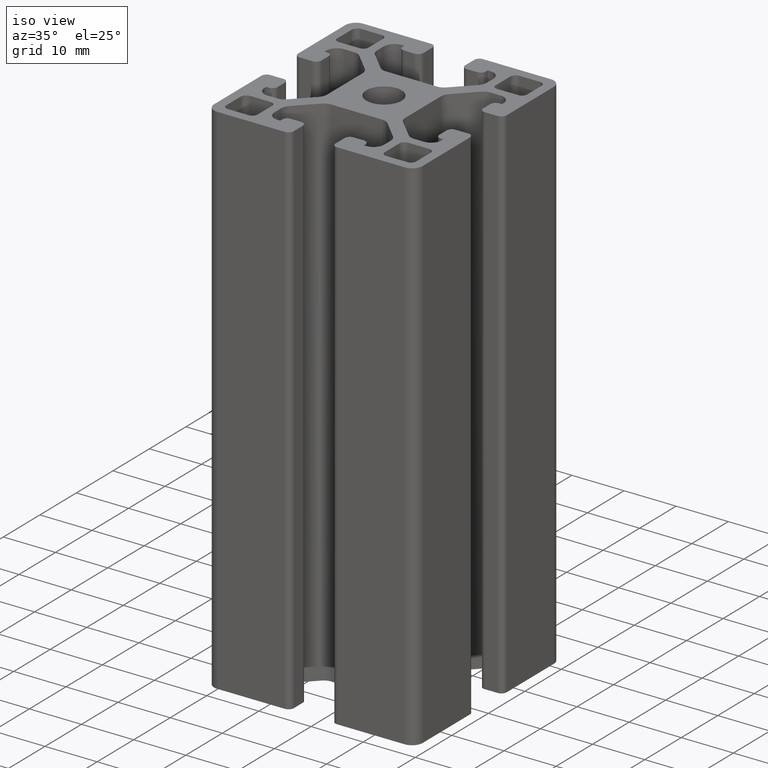
[diagram: clean part render]
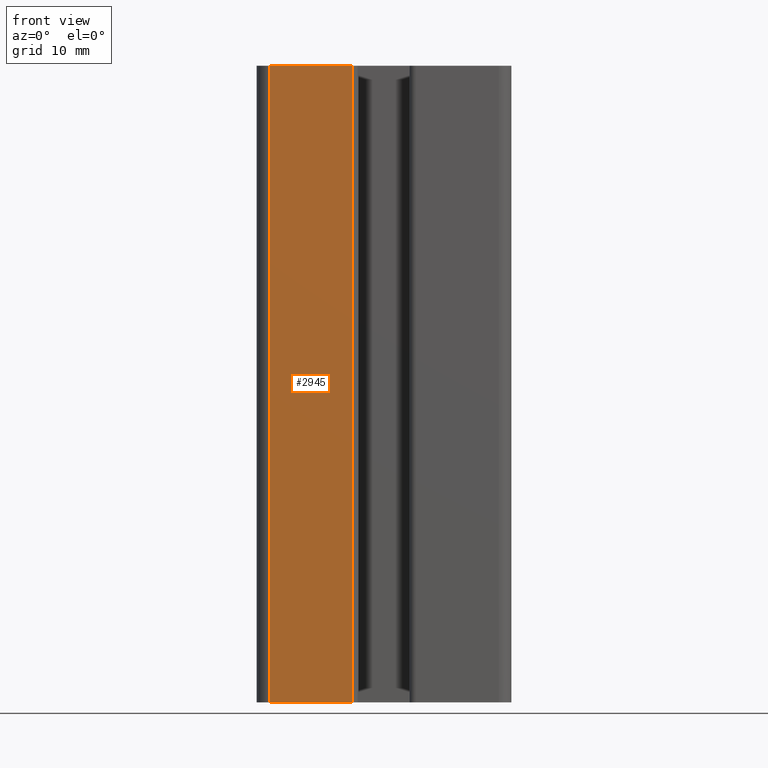
[diagram: tour spotlight — one face highlighted and labeled with its STEP entity id]
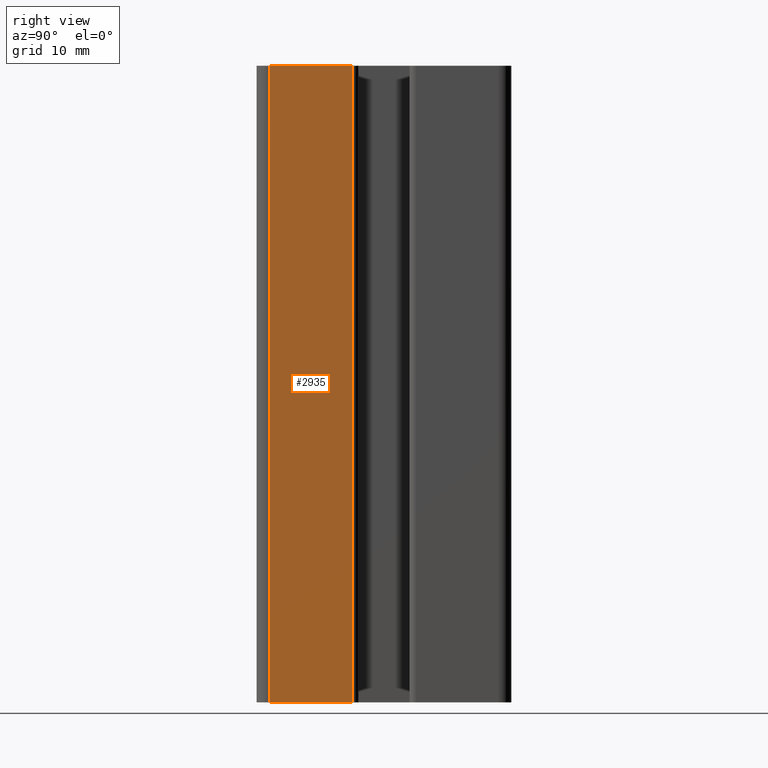
[diagram: tour spotlight — one face highlighted and labeled with its STEP entity id]
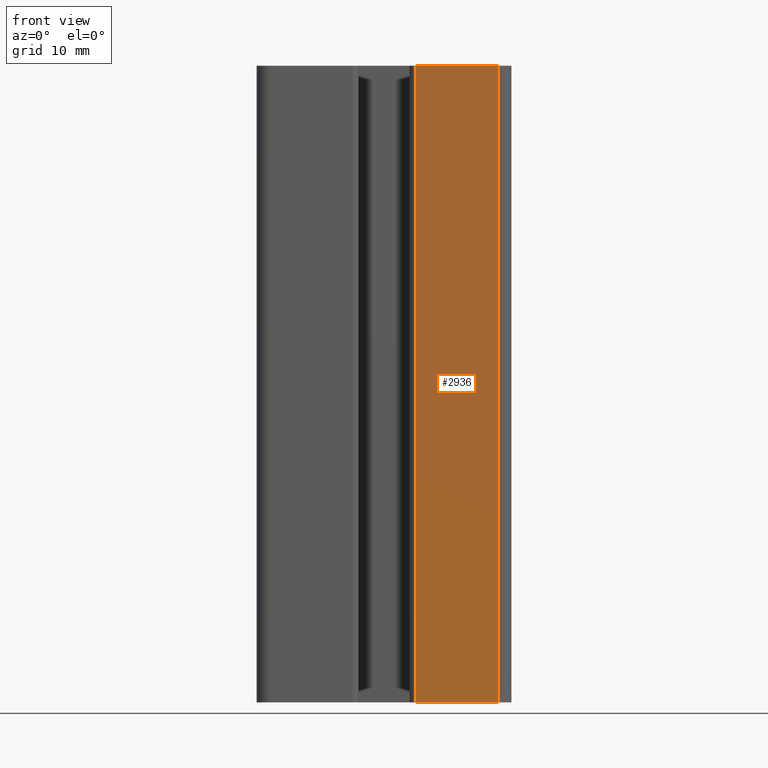
[diagram: tour spotlight — one face highlighted and labeled with its STEP entity id]
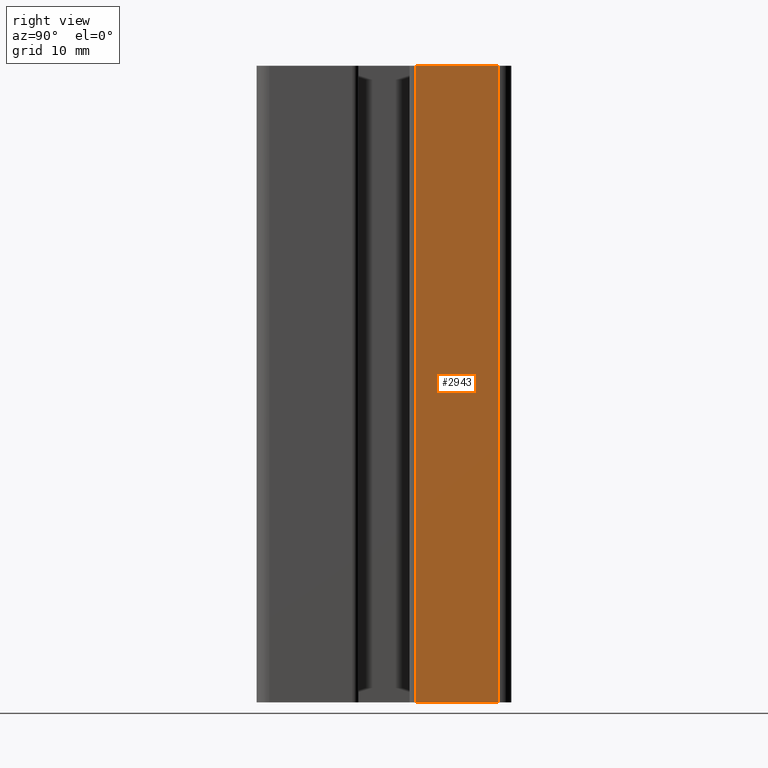
[diagram: tour spotlight — one face highlighted and labeled with its STEP entity id]
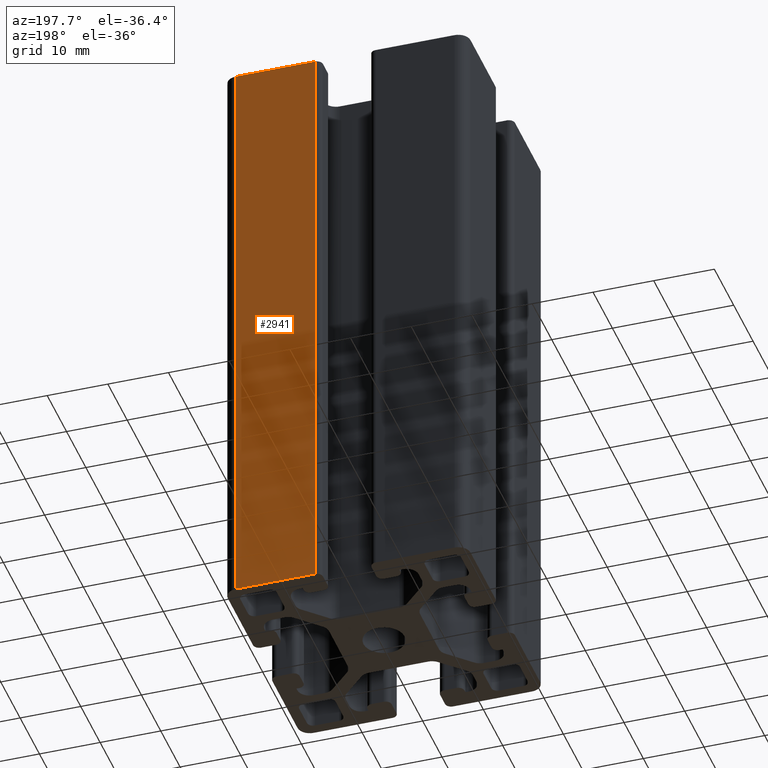
[diagram: tour spotlight — one face highlighted and labeled with its STEP entity id]
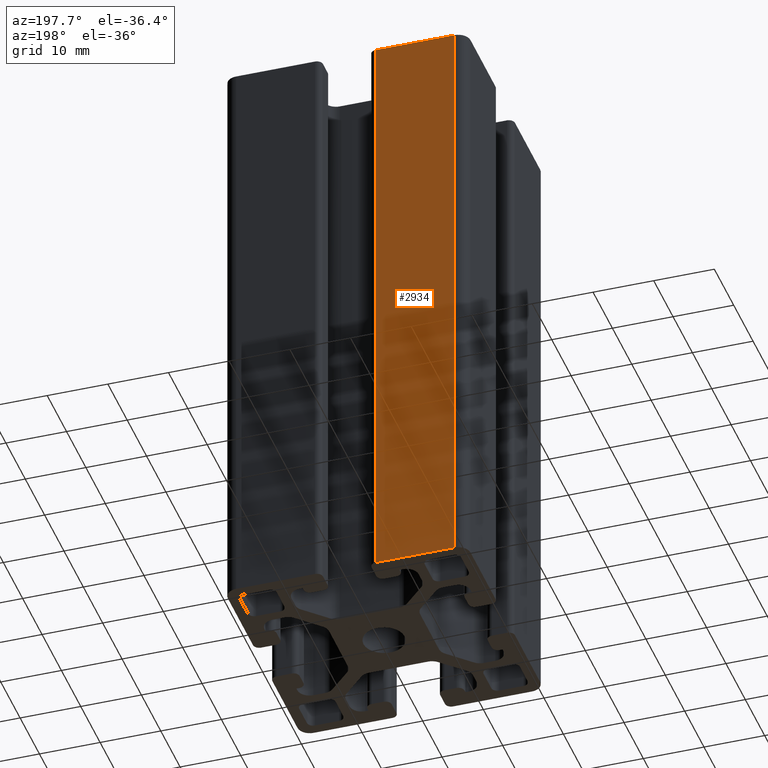
[diagram: tour spotlight — one face highlighted and labeled with its STEP entity id]
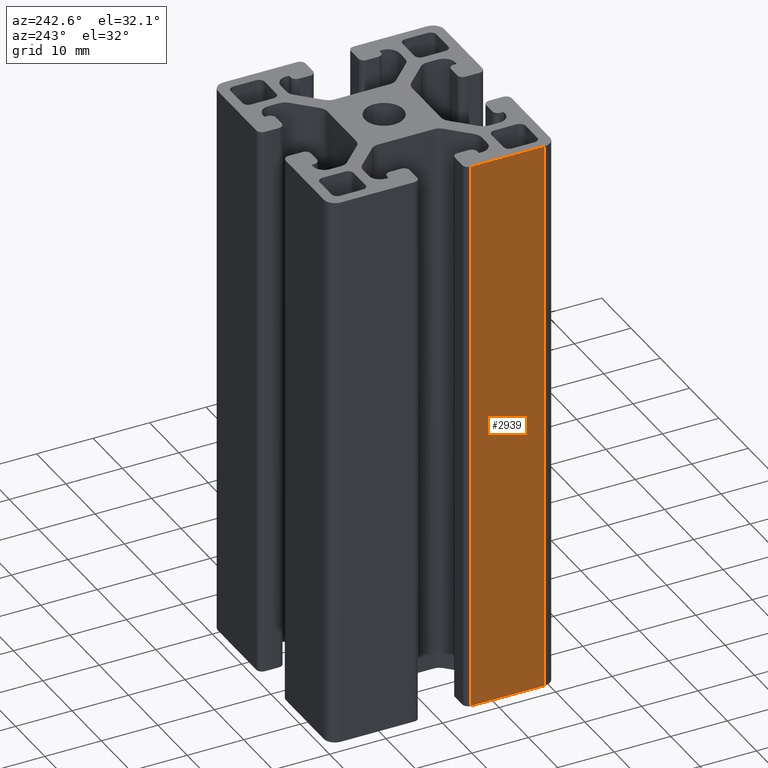
[diagram: tour spotlight — one face highlighted and labeled with its STEP entity id]
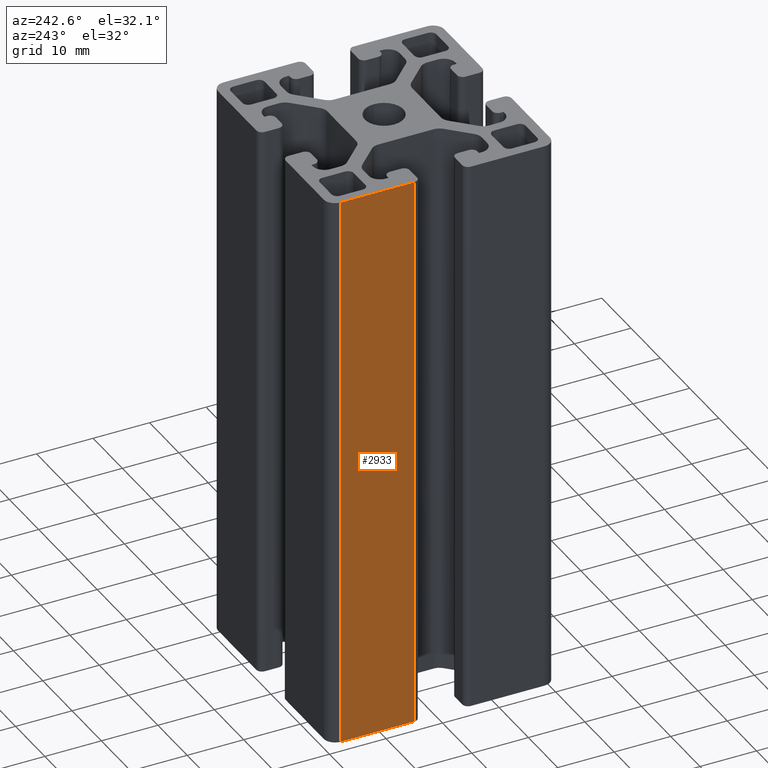
[diagram: tour spotlight — one face highlighted and labeled with its STEP entity id]
A machine part: a face-by-face anatomy tour. The part has 147 B-rep faces; the first image is the clean iso view, then the 8 largest visible faces are spotlighted one at a time (largest first), each with its STEP entity span.

Face 1 — front view, entity #2945. In plain terms, the highlighted planar face has unit normal (0, -1, 0).
Definition (entity closure, byte-faithful):
#378=FACE_OUTER_BOUND('',#531,.T.);
#531=EDGE_LOOP('',(#2573,#2574,#2575,#2576));
#786=LINE('',#4845,#1082);
#824=LINE('',#4945,#1120);
#827=LINE('',#4954,#1123);
#833=LINE('',#4972,#1129);
#1082=VECTOR('',#3966,100.);
#1120=VECTOR('',#4064,13.0000019959489);
#1123=VECTOR('',#4073,100.);
#1129=VECTOR('',#4099,13.0000019959489);
#1380=VERTEX_POINT('',#4841);
#1382=VERTEX_POINT('',#4844);
#1414=VERTEX_POINT('',#4944);
#1416=VERTEX_POINT('',#4950);
#1787=EDGE_CURVE('',#1380,#1382,#786,.T.);
#1839=EDGE_CURVE('',#1382,#1414,#824,.T.);
#1844=EDGE_CURVE('',#1414,#1416,#827,.T.);
#1853=EDGE_CURVE('',#1380,#1416,#833,.T.);
#2573=ORIENTED_EDGE('',*,*,#1787,.F.);
#2574=ORIENTED_EDGE('',*,*,#1853,.T.);
#2575=ORIENTED_EDGE('',*,*,#1844,.F.);
#2576=ORIENTED_EDGE('',*,*,#1839,.F.);
#2798=PLANE('',#3232);
#2945=ADVANCED_FACE('',(#378),#2798,.T.);
#3232=AXIS2_PLACEMENT_3D('',#4971,#4097,#4098);
#3966=DIRECTION('',(0.,0.,-1.));
#4064=DIRECTION('',(-1.,0.,0.));
#4073=DIRECTION('',(0.,0.,1.));
#4097=DIRECTION('center_axis',(0.,-1.,0.));
#4098=DIRECTION('ref_axis',(1.,0.,0.));
#4099=DIRECTION('',(-1.,0.,0.));
#4841=CARTESIAN_POINT('',(-4.99999800405114,-20.,100.));
#4844=CARTESIAN_POINT('',(-4.99999800405114,-20.,0.));
#4845=CARTESIAN_POINT('',(-4.99999800405114,-20.,0.));
#4944=CARTESIAN_POINT('',(-18.,-20.,0.));
#4945=CARTESIAN_POINT('',(-9.,-20.,0.));
#4950=CARTESIAN_POINT('',(-18.,-20.,100.));
#4954=CARTESIAN_POINT('',(-18.,-20.,0.));
#4971=CARTESIAN_POINT('Origin',(-18.,-20.,0.));
#4972=CARTESIAN_POINT('',(-9.,-20.,100.));

Face 2 — right view, entity #2935. In plain terms, the highlighted planar face has unit normal (1, 0, 0).
Definition (entity closure, byte-faithful):
#368=FACE_OUTER_BOUND('',#516,.T.);
#516=EDGE_LOOP('',(#2392,#2393,#2394,#2395));
#705=LINE('',#4601,#1001);
#816=LINE('',#4926,#1112);
#817=LINE('',#4928,#1113);
#818=LINE('',#4929,#1114);
#1001=VECTOR('',#3725,100.);
#1112=VECTOR('',#4046,13.0000019959488);
#1113=VECTOR('',#4047,100.);
#1114=VECTOR('',#4048,13.0000019959488);
#1298=VERTEX_POINT('',#4598);
#1299=VERTEX_POINT('',#4600);
#1408=VERTEX_POINT('',#4925);
#1409=VERTEX_POINT('',#4927);
#1666=EDGE_CURVE('',#1298,#1299,#705,.T.);
#1828=EDGE_CURVE('',#1298,#1408,#816,.T.);
#1829=EDGE_CURVE('',#1409,#1408,#817,.T.);
#1830=EDGE_CURVE('',#1299,#1409,#818,.T.);
#2392=ORIENTED_EDGE('',*,*,#1666,.F.);
#2393=ORIENTED_EDGE('',*,*,#1828,.T.);
#2394=ORIENTED_EDGE('',*,*,#1829,.F.);
#2395=ORIENTED_EDGE('',*,*,#1830,.F.);
#2792=PLANE('',#3214);
#2935=ADVANCED_FACE('',(#368),#2792,.T.);
#3214=AXIS2_PLACEMENT_3D('',#4924,#4044,#4045);
#3725=DIRECTION('',(0.,0.,-1.));
#4044=DIRECTION('center_axis',(1.,0.,0.));
#4045=DIRECTION('ref_axis',(0.,1.,0.));
#4046=DIRECTION('',(0.,-1.,0.));
#4047=DIRECTION('',(0.,0.,1.));
#4048=DIRECTION('',(0.,-1.,0.));
#4598=CARTESIAN_POINT('',(20.,-4.99999800405117,100.));
#4600=CARTESIAN_POINT('',(20.,-4.99999800405117,0.));
#4601=CARTESIAN_POINT('',(20.,-4.99999800405116,0.));
#4924=CARTESIAN_POINT('Origin',(20.,-18.,0.));
#4925=CARTESIAN_POINT('',(20.,-18.,100.));
#4926=CARTESIAN_POINT('',(20.,-9.,100.));
#4927=CARTESIAN_POINT('',(20.,-18.,0.));
#4928=CARTESIAN_POINT('',(20.,-18.,0.));
#4929=CARTESIAN_POINT('',(20.,-9.,0.));

Face 3 — front view, entity #2936. In plain terms, the highlighted planar face has unit normal (0, -1, 0).
Definition (entity closure, byte-faithful):
#369=FACE_OUTER_BOUND('',#517,.T.);
#517=EDGE_LOOP('',(#2396,#2397,#2398,#2399));
#785=LINE('',#4839,#1081);
#819=LINE('',#4932,#1115);
#820=LINE('',#4934,#1116);
#821=LINE('',#4935,#1117);
#1081=VECTOR('',#3961,100.);
#1115=VECTOR('',#4051,13.0000019959488);
#1116=VECTOR('',#4052,100.);
#1117=VECTOR('',#4053,13.0000019959488);
#1378=VERTEX_POINT('',#4835);
#1379=VERTEX_POINT('',#4837);
#1410=VERTEX_POINT('',#4931);
#1411=VERTEX_POINT('',#4933);
#1785=EDGE_CURVE('',#1378,#1379,#785,.T.);
#1831=EDGE_CURVE('',#1410,#1379,#819,.T.);
#1832=EDGE_CURVE('',#1410,#1411,#820,.T.);
#1833=EDGE_CURVE('',#1411,#1378,#821,.T.);
#2396=ORIENTED_EDGE('',*,*,#1785,.T.);
#2397=ORIENTED_EDGE('',*,*,#1831,.F.);
#2398=ORIENTED_EDGE('',*,*,#1832,.T.);
#2399=ORIENTED_EDGE('',*,*,#1833,.T.);
#2793=PLANE('',#3215);
#2936=ADVANCED_FACE('',(#369),#2793,.T.);
#3215=AXIS2_PLACEMENT_3D('',#4930,#4049,#4050);
#3961=DIRECTION('',(0.,0.,-1.));
#4049=DIRECTION('center_axis',(0.,-1.,0.));
#4050=DIRECTION('ref_axis',(1.,0.,0.));
#4051=DIRECTION('',(-1.,0.,0.));
#4052=DIRECTION('',(0.,0.,1.));
#4053=DIRECTION('',(-1.,0.,0.));
#4835=CARTESIAN_POINT('',(4.99999800405117,-20.,100.));
#4837=CARTESIAN_POINT('',(4.99999800405117,-20.,0.));
#4839=CARTESIAN_POINT('',(4.99999800405117,-20.,0.));
#4930=CARTESIAN_POINT('Origin',(-18.,-20.,0.));
#4931=CARTESIAN_POINT('',(18.,-20.,0.));
#4932=CARTESIAN_POINT('',(-9.,-20.,0.));
#4933=CARTESIAN_POINT('',(18.,-20.,100.));
#4934=CARTESIAN_POINT('',(18.,-20.,0.));
#4935=CARTESIAN_POINT('',(-9.,-20.,100.));

Face 4 — right view, entity #2943. In plain terms, the highlighted planar face has unit normal (1, 0, 0).
Definition (entity closure, byte-faithful):
#376=FACE_OUTER_BOUND('',#529,.T.);
#529=EDGE_LOOP('',(#2565,#2566,#2567,#2568));
#707=LINE('',#4611,#1003);
#823=LINE('',#4942,#1119);
#831=LINE('',#4966,#1127);
#832=LINE('',#4968,#1128);
#1003=VECTOR('',#3735,100.);
#1119=VECTOR('',#4061,13.0000019959489);
#1127=VECTOR('',#4089,100.);
#1128=VECTOR('',#4092,13.0000019959489);
#1301=VERTEX_POINT('',#4605);
#1303=VERTEX_POINT('',#4609);
#1413=VERTEX_POINT('',#4940);
#1419=VERTEX_POINT('',#4964);
#1671=EDGE_CURVE('',#1301,#1303,#707,.T.);
#1837=EDGE_CURVE('',#1413,#1303,#823,.T.);
#1850=EDGE_CURVE('',#1413,#1419,#831,.T.);
#1851=EDGE_CURVE('',#1419,#1301,#832,.T.);
#2565=ORIENTED_EDGE('',*,*,#1671,.T.);
#2566=ORIENTED_EDGE('',*,*,#1837,.F.);
#2567=ORIENTED_EDGE('',*,*,#1850,.T.);
#2568=ORIENTED_EDGE('',*,*,#1851,.T.);
#2797=PLANE('',#3229);
#2943=ADVANCED_FACE('',(#376),#2797,.T.);
#3229=AXIS2_PLACEMENT_3D('',#4967,#4090,#4091);
#3735=DIRECTION('',(0.,0.,-1.));
#4061=DIRECTION('',(0.,-1.,0.));
#4089=DIRECTION('',(0.,0.,1.));
#4090=DIRECTION('center_axis',(1.,0.,0.));
#4091=DIRECTION('ref_axis',(0.,1.,0.));
#4092=DIRECTION('',(0.,-1.,0.));
#4605=CARTESIAN_POINT('',(20.,4.99999800405114,100.));
#4609=CARTESIAN_POINT('',(20.,4.99999800405114,0.));
#4611=CARTESIAN_POINT('',(20.,4.99999800405114,0.));
#4940=CARTESIAN_POINT('',(20.,18.,0.));
#4942=CARTESIAN_POINT('',(20.,-9.,0.));
#4964=CARTESIAN_POINT('',(20.,18.,100.));
#4966=CARTESIAN_POINT('',(20.,18.,0.));
#4967=CARTESIAN_POINT('Origin',(20.,-18.,0.));
#4968=CARTESIAN_POINT('',(20.,-9.,100.));

Face 5 — auxiliary view, entity #2941. In plain terms, the highlighted planar face has unit normal (0, 1, 0).
Definition (entity closure, byte-faithful):
#374=FACE_OUTER_BOUND('',#527,.T.);
#527=EDGE_LOOP('',(#2557,#2558,#2559,#2560));
#685=LINE('',#4545,#981);
#822=LINE('',#4939,#1118);
#829=LINE('',#4961,#1125);
#830=LINE('',#4962,#1126);
#981=VECTOR('',#3671,100.);
#1118=VECTOR('',#4058,13.0000019959488);
#1125=VECTOR('',#4083,13.0000019959488);
#1126=VECTOR('',#4084,100.);
#1278=VERTEX_POINT('',#4541);
#1280=VERTEX_POINT('',#4544);
#1412=VERTEX_POINT('',#4938);
#1418=VERTEX_POINT('',#4960);
#1638=EDGE_CURVE('',#1278,#1280,#685,.T.);
#1835=EDGE_CURVE('',#1280,#1412,#822,.T.);
#1847=EDGE_CURVE('',#1278,#1418,#829,.T.);
#1848=EDGE_CURVE('',#1412,#1418,#830,.T.);
#2557=ORIENTED_EDGE('',*,*,#1638,.F.);
#2558=ORIENTED_EDGE('',*,*,#1847,.T.);
#2559=ORIENTED_EDGE('',*,*,#1848,.F.);
#2560=ORIENTED_EDGE('',*,*,#1835,.F.);
#2796=PLANE('',#3226);
#2941=ADVANCED_FACE('',(#374),#2796,.T.);
#3226=AXIS2_PLACEMENT_3D('',#4959,#4081,#4082);
#3671=DIRECTION('',(0.,0.,-1.));
#4058=DIRECTION('',(1.,0.,0.));
#4081=DIRECTION('center_axis',(0.,1.,0.));
#4082=DIRECTION('ref_axis',(-1.,0.,0.));
#4083=DIRECTION('',(1.,0.,0.));
#4084=DIRECTION('',(0.,0.,1.));
#4541=CARTESIAN_POINT('',(4.99999800405117,20.,100.));
#4544=CARTESIAN_POINT('',(4.99999800405117,20.,0.));
#4545=CARTESIAN_POINT('',(4.99999800405116,20.,0.));
#4938=CARTESIAN_POINT('',(18.,20.,0.));
#4939=CARTESIAN_POINT('',(9.,20.,0.));
#4959=CARTESIAN_POINT('Origin',(18.,20.,0.));
#4960=CARTESIAN_POINT('',(18.,20.,100.));
#4961=CARTESIAN_POINT('',(9.,20.,100.));
#4962=CARTESIAN_POINT('',(18.,20.,0.));

Face 6 — auxiliary view, entity #2934. In plain terms, the highlighted planar face has unit normal (0, 1, 0).
Definition (entity closure, byte-faithful):
#367=FACE_OUTER_BOUND('',#515,.T.);
#515=EDGE_LOOP('',(#2388,#2389,#2390,#2391));
#684=LINE('',#4539,#980);
#813=LINE('',#4920,#1109);
#814=LINE('',#4922,#1110);
#815=LINE('',#4923,#1111);
#980=VECTOR('',#3666,100.);
#1109=VECTOR('',#4041,13.0000019959489);
#1110=VECTOR('',#4042,100.);
#1111=VECTOR('',#4043,13.0000019959489);
#1276=VERTEX_POINT('',#4535);
#1277=VERTEX_POINT('',#4537);
#1406=VERTEX_POINT('',#4919);
#1407=VERTEX_POINT('',#4921);
#1636=EDGE_CURVE('',#1276,#1277,#684,.T.);
#1825=EDGE_CURVE('',#1406,#1277,#813,.T.);
#1826=EDGE_CURVE('',#1406,#1407,#814,.T.);
#1827=EDGE_CURVE('',#1407,#1276,#815,.T.);
#2388=ORIENTED_EDGE('',*,*,#1636,.T.);
#2389=ORIENTED_EDGE('',*,*,#1825,.F.);
#2390=ORIENTED_EDGE('',*,*,#1826,.T.);
#2391=ORIENTED_EDGE('',*,*,#1827,.T.);
#2791=PLANE('',#3213);
#2934=ADVANCED_FACE('',(#367),#2791,.T.);
#3213=AXIS2_PLACEMENT_3D('',#4918,#4039,#4040);
#3666=DIRECTION('',(0.,0.,-1.));
#4039=DIRECTION('center_axis',(0.,1.,0.));
#4040=DIRECTION('ref_axis',(-1.,0.,0.));
#4041=DIRECTION('',(1.,0.,0.));
#4042=DIRECTION('',(0.,0.,1.));
#4043=DIRECTION('',(1.,0.,0.));
#4535=CARTESIAN_POINT('',(-4.99999800405114,20.,100.));
#4537=CARTESIAN_POINT('',(-4.99999800405114,20.,0.));
#4539=CARTESIAN_POINT('',(-4.99999800405114,20.,0.));
#4918=CARTESIAN_POINT('Origin',(18.,20.,0.));
#4919=CARTESIAN_POINT('',(-18.,20.,0.));
#4920=CARTESIAN_POINT('',(9.,20.,0.));
#4921=CARTESIAN_POINT('',(-18.,20.,100.));
#4922=CARTESIAN_POINT('',(-18.,20.,0.));
#4923=CARTESIAN_POINT('',(9.,20.,100.));

Face 7 — auxiliary view, entity #2939. In plain terms, the highlighted planar face has unit normal (-1, 0, 0).
Definition (entity closure, byte-faithful):
#372=FACE_OUTER_BOUND('',#525,.T.);
#525=EDGE_LOOP('',(#2549,#2550,#2551,#2552));
#596=LINE('',#4287,#892);
#825=LINE('',#4948,#1121);
#826=LINE('',#4953,#1122);
#828=LINE('',#4956,#1124);
#892=VECTOR('',#3418,100.);
#1121=VECTOR('',#4067,13.0000019959488);
#1122=VECTOR('',#4072,100.);
#1124=VECTOR('',#4076,13.0000019959488);
#1191=VERTEX_POINT('',#4281);
#1193=VERTEX_POINT('',#4285);
#1415=VERTEX_POINT('',#4946);
#1417=VERTEX_POINT('',#4951);
#1510=EDGE_CURVE('',#1191,#1193,#596,.T.);
#1841=EDGE_CURVE('',#1415,#1193,#825,.T.);
#1843=EDGE_CURVE('',#1415,#1417,#826,.T.);
#1845=EDGE_CURVE('',#1417,#1191,#828,.T.);
#2549=ORIENTED_EDGE('',*,*,#1510,.T.);
#2550=ORIENTED_EDGE('',*,*,#1841,.F.);
#2551=ORIENTED_EDGE('',*,*,#1843,.T.);
#2552=ORIENTED_EDGE('',*,*,#1845,.T.);
#2795=PLANE('',#3223);
#2939=ADVANCED_FACE('',(#372),#2795,.T.);
#3223=AXIS2_PLACEMENT_3D('',#4955,#4074,#4075);
#3418=DIRECTION('',(0.,0.,-1.));
#4067=DIRECTION('',(0.,1.,0.));
#4072=DIRECTION('',(0.,0.,1.));
#4074=DIRECTION('center_axis',(-1.,0.,0.));
#4075=DIRECTION('ref_axis',(0.,-1.,0.));
#4076=DIRECTION('',(0.,1.,0.));
#4281=CARTESIAN_POINT('',(-20.,-4.99999800405117,100.));
#4285=CARTESIAN_POINT('',(-20.,-4.99999800405117,0.));
#4287=CARTESIAN_POINT('',(-20.,-4.99999800405116,0.));
#4946=CARTESIAN_POINT('',(-20.,-18.,0.));
#4948=CARTESIAN_POINT('',(-20.,9.,0.));
#4951=CARTESIAN_POINT('',(-20.,-18.,100.));
#4953=CARTESIAN_POINT('',(-20.,-18.,0.));
#4955=CARTESIAN_POINT('Origin',(-20.,18.,0.));
#4956=CARTESIAN_POINT('',(-20.,9.,100.));

Face 8 — auxiliary view, entity #2933. In plain terms, the highlighted planar face has unit normal (-1, 0, 0).
Definition (entity closure, byte-faithful):
#366=FACE_OUTER_BOUND('',#514,.T.);
#514=EDGE_LOOP('',(#2384,#2385,#2386,#2387));
#594=LINE('',#4277,#890);
#810=LINE('',#4914,#1106);
#811=LINE('',#4916,#1107);
#812=LINE('',#4917,#1108);
#890=VECTOR('',#3408,100.);
#1106=VECTOR('',#4036,13.0000019959489);
#1107=VECTOR('',#4037,100.);
#1108=VECTOR('',#4038,13.0000019959489);
#1188=VERTEX_POINT('',#4274);
#1189=VERTEX_POINT('',#4276);
#1404=VERTEX_POINT('',#4913);
#1405=VERTEX_POINT('',#4915);
#1505=EDGE_CURVE('',#1188,#1189,#594,.T.);
#1822=EDGE_CURVE('',#1188,#1404,#810,.T.);
#1823=EDGE_CURVE('',#1405,#1404,#811,.T.);
#1824=EDGE_CURVE('',#1189,#1405,#812,.T.);
#2384=ORIENTED_EDGE('',*,*,#1505,.F.);
#2385=ORIENTED_EDGE('',*,*,#1822,.T.);
#2386=ORIENTED_EDGE('',*,*,#1823,.F.);
#2387=ORIENTED_EDGE('',*,*,#1824,.F.);
#2790=PLANE('',#3212);
#2933=ADVANCED_FACE('',(#366),#2790,.T.);
#3212=AXIS2_PLACEMENT_3D('',#4912,#4034,#4035);
#3408=DIRECTION('',(0.,0.,-1.));
#4034=DIRECTION('center_axis',(-1.,0.,0.));
#4035=DIRECTION('ref_axis',(0.,-1.,0.));
#4036=DIRECTION('',(0.,1.,0.));
#4037=DIRECTION('',(0.,0.,1.));
#4038=DIRECTION('',(0.,1.,0.));
#4274=CARTESIAN_POINT('',(-20.,4.99999800405114,100.));
#4276=CARTESIAN_POINT('',(-20.,4.99999800405114,0.));
#4277=CARTESIAN_POINT('',(-20.,4.99999800405114,0.));
#4912=CARTESIAN_POINT('Origin',(-20.,18.,0.));
#4913=CARTESIAN_POINT('',(-20.,18.,100.));
#4914=CARTESIAN_POINT('',(-20.,9.,100.));
#4915=CARTESIAN_POINT('',(-20.,18.,0.));
#4916=CARTESIAN_POINT('',(-20.,18.,0.));
#4917=CARTESIAN_POINT('',(-20.,9.,0.));